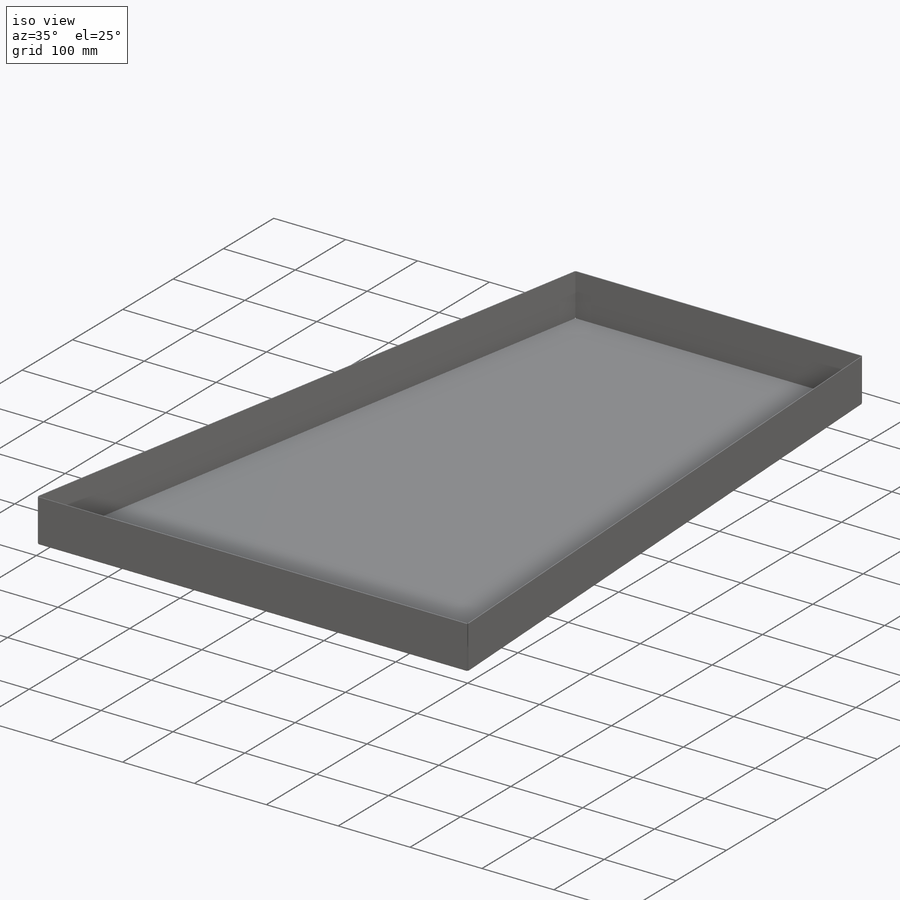
[diagram: iso view]
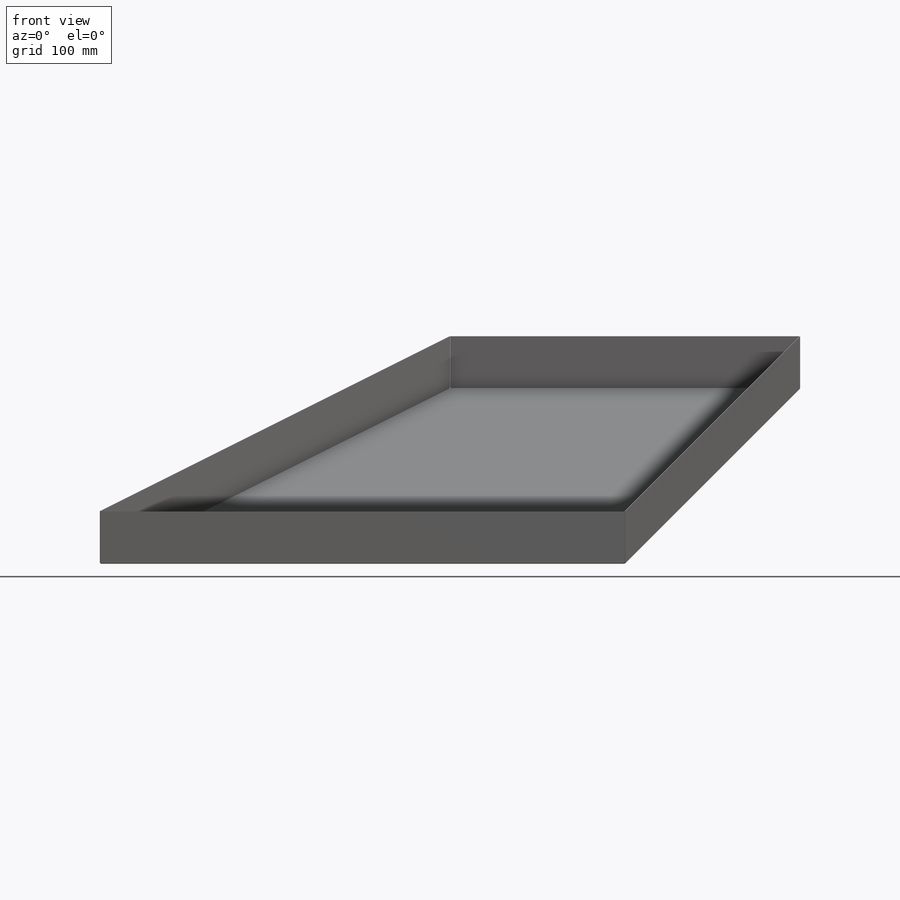
[diagram: front view]
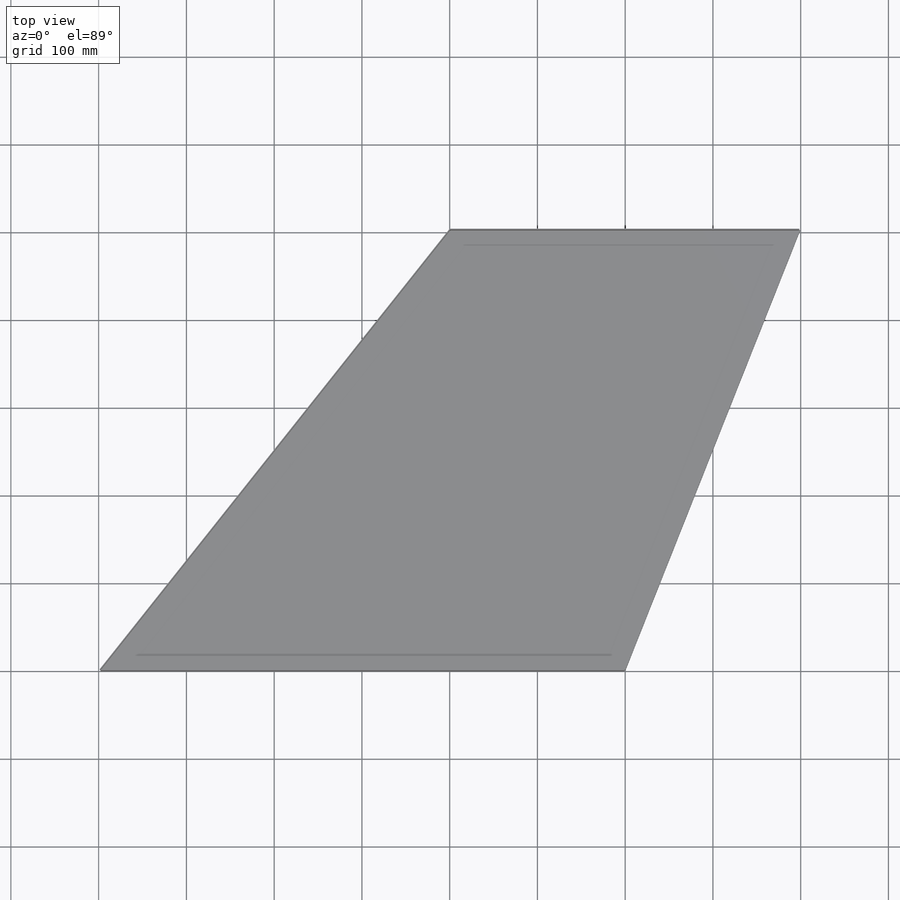
[diagram: top view]
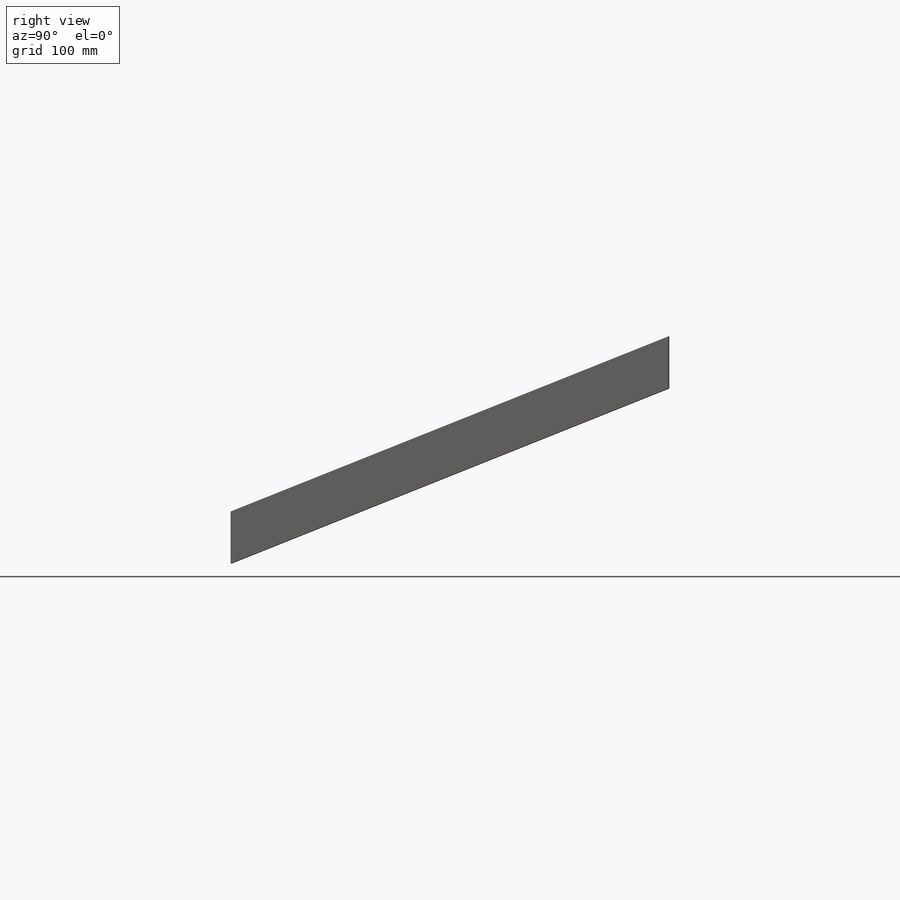
[diagram: right view]
SOLIDWORKS PART (.sldprt)
format: sldprt  version: not decoded by parser v0  size: 485,888 bytes
history: native  units: mm
features: sketch x7, plane x5, cut_extrude x2, material x1, shell x1, sheet_metal_op x1 + 4 further entries (+13 scaffold rows collapsed; 1 parser-record rows omitted)
feature tree (35):
  scaffold x13  (default folders/planes/origin — collapsed)
  material  "Material <nicht festgelegt>"
  plane  "Ebene vorne"
  plane  "Ebene oben"
  plane  "Ebene rechts"
  plane  "Ebene1"  Offset=500mm
  sketch  "Skizze1"  dims[c1.D1=~237.801636mm c2.D1=60.0mm c2.D2=600.0mm]
  sketch  "Skizze2"  dims[c1.D1=~430.195603mm c2.D1=400.0mm c2.D2=~575.734903mm c3.D2=200.0mm c3.D3=60.0mm c3.D4=400.0mm]
  plane  "Ebene2"
  shell  "Wandung1"  Thickness=1mm
  sketch  "Skizze12"
  cut_extrude  "Schnitt-Linear austragen1"  [1 undecoded]
  sheet_metal_op  "Blech3"  Dicke=1mm
  sketch  "Skizze-Winkel3"  dims[c1.Biegung-Winkel9=0.0 c1.D1=0.0mm c1.D4=~68.198591deg c1.D5=4.0 c1.D8=0.0mm c1.D9=0.0mm c1.Biegung-Winkel10=0.0 c2.D1=0.0mm c2.D4=~97.928142deg c2.D5=3.0 c2.D8=0.0mm c2.D9=0.0mm c2.Biegung-Winkel11=0.0 c3.D1=0.0mm c3.D4=~76.584803deg c3.D5=2.0 c3.D8=0.0mm c3.D9=0.0mm c4.D1=0.0mm]
  sketch  "Skizze14"  dims[D1=1.0mm D2=1.0mm D3=1.0mm D4=1.0mm]
  cut_extrude  "Schnitt-Linear austragen2"  [1 undecoded]
  sketch  "Abwicklung-Skizze3"  dims[D1=0.0mm D2=500.0mm D3=0.0mm]
  "Abwicklung3"
  sketch  "Biegung-Linien3"
  "Abwickeln-<Biegung-Winkel10>1"
  "Abwickeln-<Biegung-Winkel11>1"
  "Abwickeln-<Biegung-Winkel12>1"
  parser-record x1  (decoder bookkeeping rows leaked as tree rows — omitted from the tree; the rows remain in map.json)
decode coverage: 7 of 11 modeling features carry decoded parameters; 4 rows unclassified (native names shown)
note: ~ marks probable driven/reference dimensions
note: 2 parameter values undecoded
note: suppression state not decoded; provenance and decode notes live in map.json
